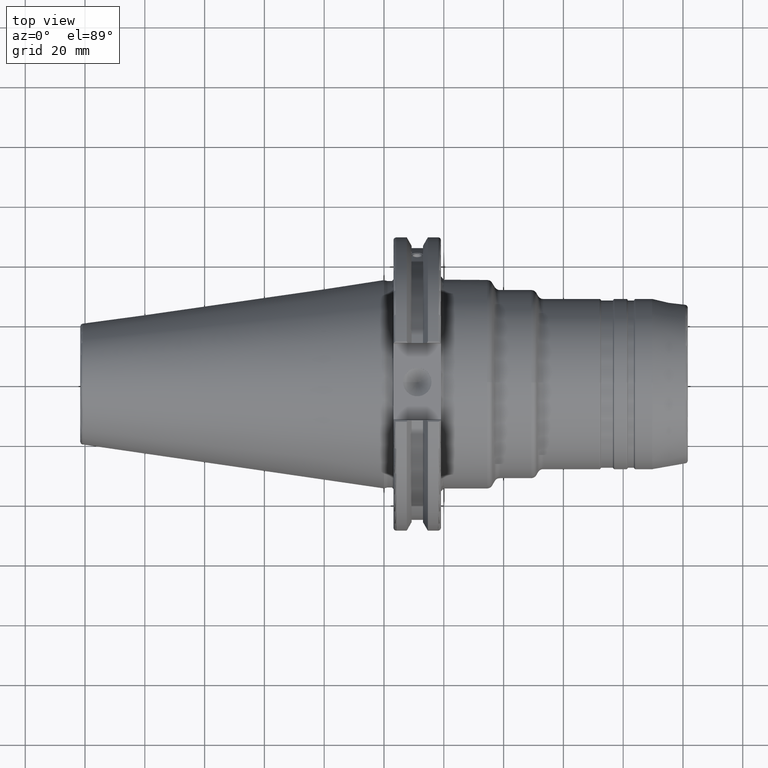
[diagram: clean part render]
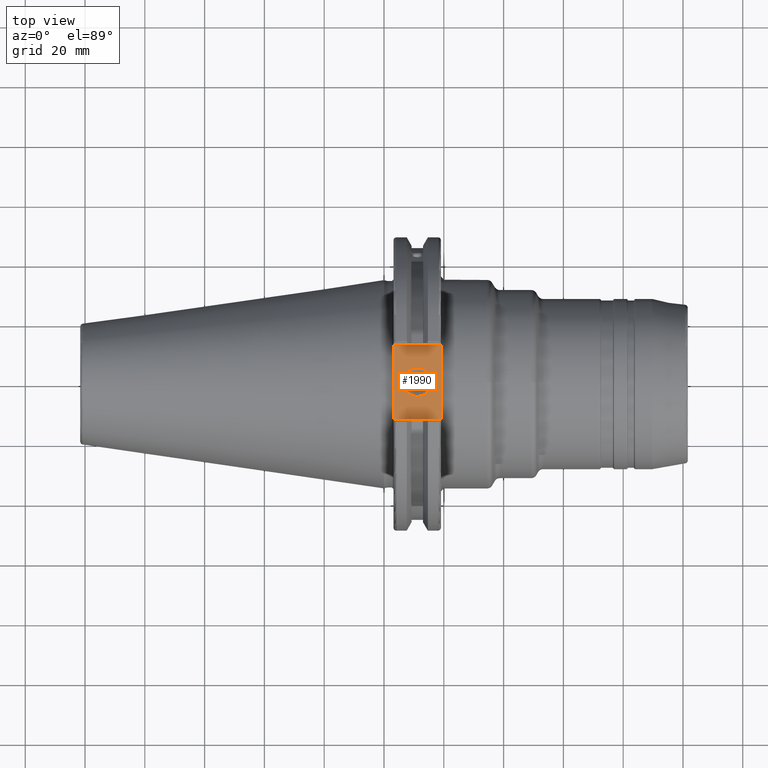
[diagram: same view with one face highlighted and labeled with its STEP entity id]
A machine part, top view. The second image highlights one B-rep face of the part: STEP entity #1990.
In plain terms, the highlighted planar face has unit normal (0, 0, 1).
Its self-contained STEP definition (entity closure, byte-faithful):
#66=PLANE('',#2257);
#127=FACE_BOUND('',#398,.T.);
#270=FACE_OUTER_BOUND('',#397,.T.);
#397=EDGE_LOOP('',(#1817,#1818,#1819,#1820));
#398=EDGE_LOOP('',(#1821));
#457=LINE('',#3647,#562);
#475=LINE('',#3736,#580);
#496=LINE('',#3902,#601);
#498=LINE('',#3905,#603);
#562=VECTOR('',#2678,10.);
#580=VECTOR('',#2714,10.);
#601=VECTOR('',#2789,10.);
#603=VECTOR('',#2793,10.);
#746=CIRCLE('',#2249,4.7625);
#894=VERTEX_POINT('',#3644);
#895=VERTEX_POINT('',#3646);
#916=VERTEX_POINT('',#3733);
#917=VERTEX_POINT('',#3735);
#953=VERTEX_POINT('',#3941);
#1150=EDGE_CURVE('',#894,#895,#457,.T.);
#1179=EDGE_CURVE('',#916,#917,#475,.T.);
#1226=EDGE_CURVE('',#917,#894,#496,.T.);
#1228=EDGE_CURVE('',#895,#916,#498,.T.);
#1243=EDGE_CURVE('',#953,#953,#746,.T.);
#1817=ORIENTED_EDGE('',*,*,#1226,.F.);
#1818=ORIENTED_EDGE('',*,*,#1179,.F.);
#1819=ORIENTED_EDGE('',*,*,#1228,.F.);
#1820=ORIENTED_EDGE('',*,*,#1150,.F.);
#1821=ORIENTED_EDGE('',*,*,#1243,.T.);
#1990=ADVANCED_FACE('',(#270,#127),#66,.T.);
#2249=AXIS2_PLACEMENT_3D('',#3942,#2828,#2829);
#2257=AXIS2_PLACEMENT_3D('',#3951,#2845,#2846);
#2678=DIRECTION('',(0.,1.,0.));
#2714=DIRECTION('',(0.,-1.,0.));
#2789=DIRECTION('',(-1.,1.31581988103722E-16,0.));
#2793=DIRECTION('',(1.,0.,0.));
#2828=DIRECTION('center_axis',(0.,0.,-1.));
#2829=DIRECTION('ref_axis',(1.,0.,0.));
#2845=DIRECTION('center_axis',(0.,0.,1.));
#2846=DIRECTION('ref_axis',(1.,0.,0.));
#3644=CARTESIAN_POINT('',(3.175,-12.45,37.719));
#3646=CARTESIAN_POINT('',(3.175,12.45,37.719));
#3647=CARTESIAN_POINT('',(3.175,24.60625,37.719));
#3733=CARTESIAN_POINT('',(19.05,12.45,37.719));
#3735=CARTESIAN_POINT('',(19.05,-12.45,37.719));
#3736=CARTESIAN_POINT('',(19.05,0.,37.719));
#3902=CARTESIAN_POINT('',(10.63125,-12.45,37.719));
#3905=CARTESIAN_POINT('',(19.06875,12.45,37.719));
#3941=CARTESIAN_POINT('',(6.3716,-5.83238038093927E-16,37.719));
#3942=CARTESIAN_POINT('Origin',(11.1341,0.,37.719));
#3951=CARTESIAN_POINT('Origin',(18.0875,0.,37.719));